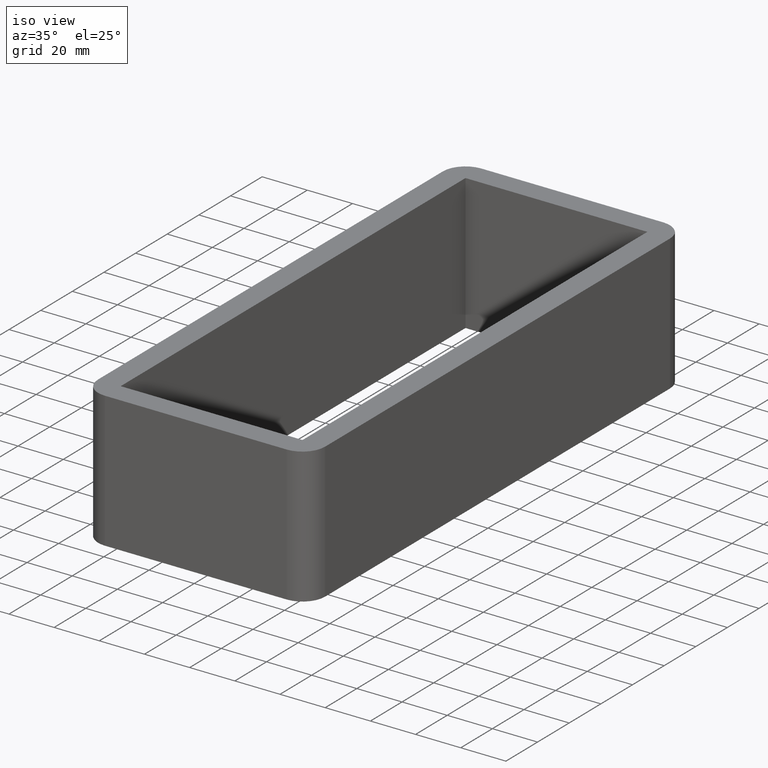
[diagram: clean part render]
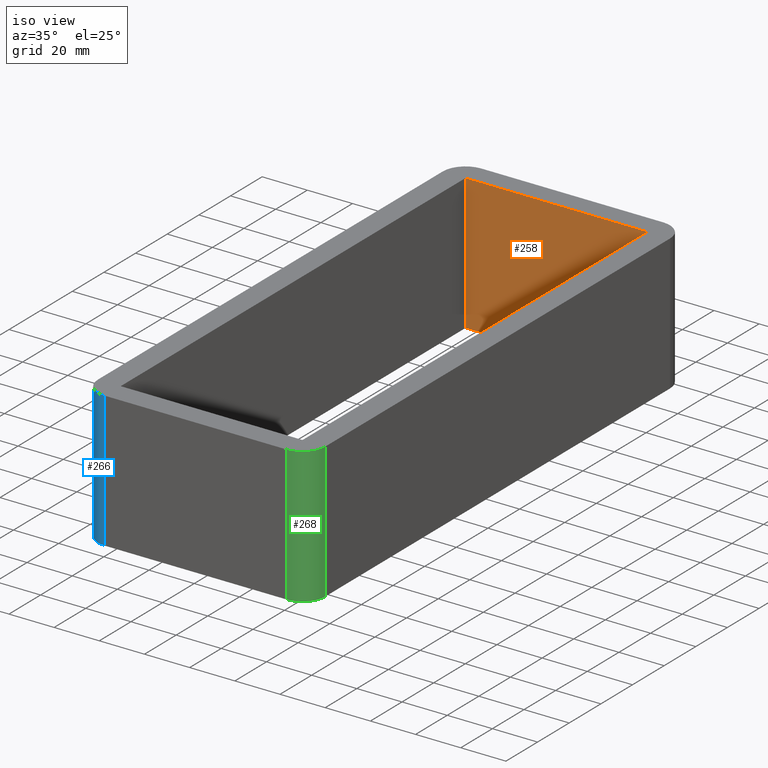
[diagram: same view with three faces highlighted in distinct colors, each labeled with its STEP entity id]
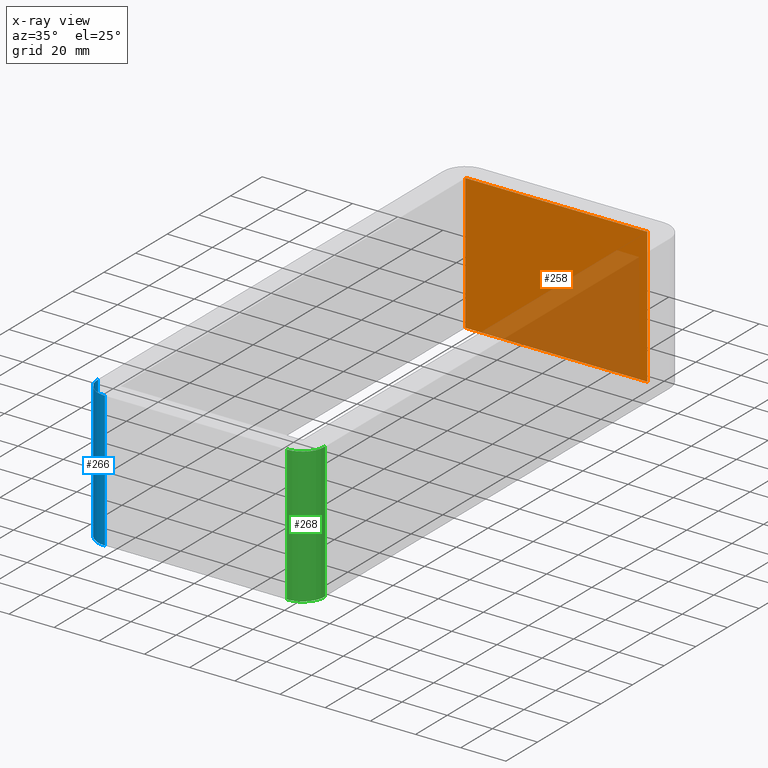
[diagram: x-ray of the same camera — body ghosted, the three highlighted faces saturated]
A machine part, iso view with three faces highlighted in distinct colors.
The next image is the same camera in x-ray (body ghosted, the three faces saturated) — at least one of them is partly hidden behind the body in this view.
Their STEP definitions:

[orange] entity #258 — the highlighted planar face has unit normal (0, 1, 0).
#30=FACE_OUTER_BOUND('',#44,.T.);
#44=EDGE_LOOP('',(#179,#180,#181,#182));
#62=LINE('',#396,#90);
#63=LINE('',#399,#91);
#64=LINE('',#401,#92);
#65=LINE('',#402,#93);
#90=VECTOR('',#320,10.);
#91=VECTOR('',#323,10.);
#92=VECTOR('',#324,10.);
#93=VECTOR('',#325,10.);
#116=VERTEX_POINT('',#390);
#118=VERTEX_POINT('',#394);
#119=VERTEX_POINT('',#398);
#120=VERTEX_POINT('',#400);
#142=EDGE_CURVE('',#118,#116,#62,.T.);
#143=EDGE_CURVE('',#116,#119,#63,.T.);
#144=EDGE_CURVE('',#120,#118,#64,.T.);
#145=EDGE_CURVE('',#120,#119,#65,.T.);
#179=ORIENTED_EDGE('',*,*,#143,.F.);
#180=ORIENTED_EDGE('',*,*,#142,.F.);
#181=ORIENTED_EDGE('',*,*,#144,.F.);
#182=ORIENTED_EDGE('',*,*,#145,.T.);
#248=PLANE('',#292);
#258=ADVANCED_FACE('',(#30),#248,.F.);
#292=AXIS2_PLACEMENT_3D('',#397,#321,#322);
#320=DIRECTION('',(0.,0.,-1.));
#321=DIRECTION('center_axis',(0.,1.,0.));
#322=DIRECTION('ref_axis',(1.,0.,0.));
#323=DIRECTION('',(-1.,0.,0.));
#324=DIRECTION('',(1.,0.,0.));
#325=DIRECTION('',(0.,0.,-1.));
#390=CARTESIAN_POINT('',(40.2500000000036,108.99999999999,-60.));
#394=CARTESIAN_POINT('',(40.2500000000036,108.99999999999,0.));
#396=CARTESIAN_POINT('',(40.2500000000036,108.99999999999,0.));
#397=CARTESIAN_POINT('Origin',(-40.2499999999997,108.99999999999,0.));
#398=CARTESIAN_POINT('',(-40.2499999999997,108.99999999999,-60.));
#399=CARTESIAN_POINT('',(-20.1249999999999,108.99999999999,-60.));
#400=CARTESIAN_POINT('',(-40.2499999999997,108.99999999999,0.));
#401=CARTESIAN_POINT('',(-20.1249999999999,108.99999999999,0.));
#402=CARTESIAN_POINT('',(-40.2499999999997,108.99999999999,0.));

[blue] entity #266 — the highlighted cylindrical surface (edge-blend (fillet) strip) has radius 10 mm, axis along (0, 0, -1).
#20=CIRCLE('',#301,10.);
#23=CIRCLE('',#307,10.);
#27=CYLINDRICAL_SURFACE('',#306,10.);
#38=FACE_OUTER_BOUND('',#53,.T.);
#53=EDGE_LOOP('',(#219,#220,#221,#222));
#80=LINE('',#445,#108);
#82=LINE('',#449,#110);
#108=VECTOR('',#366,10.);
#110=VECTOR('',#370,10.);
#131=VERTEX_POINT('',#432);
#132=VERTEX_POINT('',#434);
#135=VERTEX_POINT('',#444);
#136=VERTEX_POINT('',#448);
#161=EDGE_CURVE('',#132,#131,#20,.T.);
#166=EDGE_CURVE('',#135,#132,#80,.T.);
#168=EDGE_CURVE('',#131,#136,#82,.T.);
#169=EDGE_CURVE('',#136,#135,#23,.T.);
#219=ORIENTED_EDGE('',*,*,#161,.T.);
#220=ORIENTED_EDGE('',*,*,#168,.T.);
#221=ORIENTED_EDGE('',*,*,#169,.T.);
#222=ORIENTED_EDGE('',*,*,#166,.T.);
#266=ADVANCED_FACE('',(#38),#27,.T.);
#301=AXIS2_PLACEMENT_3D('',#435,#354,#355);
#306=AXIS2_PLACEMENT_3D('',#447,#368,#369);
#307=AXIS2_PLACEMENT_3D('',#450,#371,#372);
#354=DIRECTION('center_axis',(0.,0.,1.));
#355=DIRECTION('ref_axis',(-0.707106781186547,-0.707106781186547,0.));
#366=DIRECTION('',(0.,0.,-1.));
#368=DIRECTION('center_axis',(0.,0.,-1.));
#369=DIRECTION('ref_axis',(-0.707106781186547,-0.707106781186547,0.));
#370=DIRECTION('',(0.,0.,1.));
#371=DIRECTION('center_axis',(0.,0.,-1.));
#372=DIRECTION('ref_axis',(-0.707106781186547,-0.707106781186547,0.));
#432=CARTESIAN_POINT('',(-40.2499999999999,-119.000000000001,-60.));
#434=CARTESIAN_POINT('',(-50.2499999999999,-109.000000000001,-60.));
#435=CARTESIAN_POINT('Origin',(-40.2499999999999,-109.000000000001,-60.));
#444=CARTESIAN_POINT('',(-50.2499999999999,-109.000000000001,0.));
#445=CARTESIAN_POINT('',(-50.2499999999999,-109.000000000001,0.));
#447=CARTESIAN_POINT('Origin',(-40.2499999999999,-109.000000000001,0.));
#448=CARTESIAN_POINT('',(-40.2499999999999,-119.000000000001,0.));
#449=CARTESIAN_POINT('',(-40.2499999999999,-119.000000000001,0.));
#450=CARTESIAN_POINT('Origin',(-40.2499999999999,-109.000000000001,0.));

[green] entity #268 — the highlighted cylindrical surface (edge-blend (fillet) strip) has radius 10 mm, axis along (0, 0, -1).
#19=CIRCLE('',#300,10.);
#24=CIRCLE('',#310,10.);
#28=CYLINDRICAL_SURFACE('',#309,10.);
#40=FACE_OUTER_BOUND('',#55,.T.);
#55=EDGE_LOOP('',(#227,#228,#229,#230));
#83=LINE('',#453,#111);
#85=LINE('',#457,#113);
#111=VECTOR('',#375,10.);
#113=VECTOR('',#379,10.);
#129=VERTEX_POINT('',#428);
#130=VERTEX_POINT('',#430);
#137=VERTEX_POINT('',#452);
#138=VERTEX_POINT('',#456);
#159=EDGE_CURVE('',#130,#129,#19,.T.);
#170=EDGE_CURVE('',#137,#130,#83,.T.);
#172=EDGE_CURVE('',#129,#138,#85,.T.);
#173=EDGE_CURVE('',#138,#137,#24,.T.);
#227=ORIENTED_EDGE('',*,*,#159,.T.);
#228=ORIENTED_EDGE('',*,*,#172,.T.);
#229=ORIENTED_EDGE('',*,*,#173,.T.);
#230=ORIENTED_EDGE('',*,*,#170,.T.);
#268=ADVANCED_FACE('',(#40),#28,.T.);
#300=AXIS2_PLACEMENT_3D('',#431,#351,#352);
#309=AXIS2_PLACEMENT_3D('',#455,#377,#378);
#310=AXIS2_PLACEMENT_3D('',#458,#380,#381);
#351=DIRECTION('center_axis',(0.,0.,1.));
#352=DIRECTION('ref_axis',(0.707106781186547,-0.707106781186547,0.));
#375=DIRECTION('',(0.,0.,-1.));
#377=DIRECTION('center_axis',(0.,0.,-1.));
#378=DIRECTION('ref_axis',(0.707106781186547,-0.707106781186547,0.));
#379=DIRECTION('',(0.,0.,1.));
#380=DIRECTION('center_axis',(0.,0.,-1.));
#381=DIRECTION('ref_axis',(0.707106781186547,-0.707106781186547,0.));
#428=CARTESIAN_POINT('',(50.2499999999999,-109.000000000001,-60.));
#430=CARTESIAN_POINT('',(40.2499999999999,-119.000000000001,-60.));
#431=CARTESIAN_POINT('Origin',(40.2499999999999,-109.000000000001,-60.));
#452=CARTESIAN_POINT('',(40.2499999999999,-119.000000000001,0.));
#453=CARTESIAN_POINT('',(40.2499999999999,-119.000000000001,0.));
#455=CARTESIAN_POINT('Origin',(40.2499999999999,-109.000000000001,0.));
#456=CARTESIAN_POINT('',(50.2499999999999,-109.000000000001,0.));
#457=CARTESIAN_POINT('',(50.2499999999999,-109.000000000001,0.));
#458=CARTESIAN_POINT('Origin',(40.2499999999999,-109.000000000001,0.));